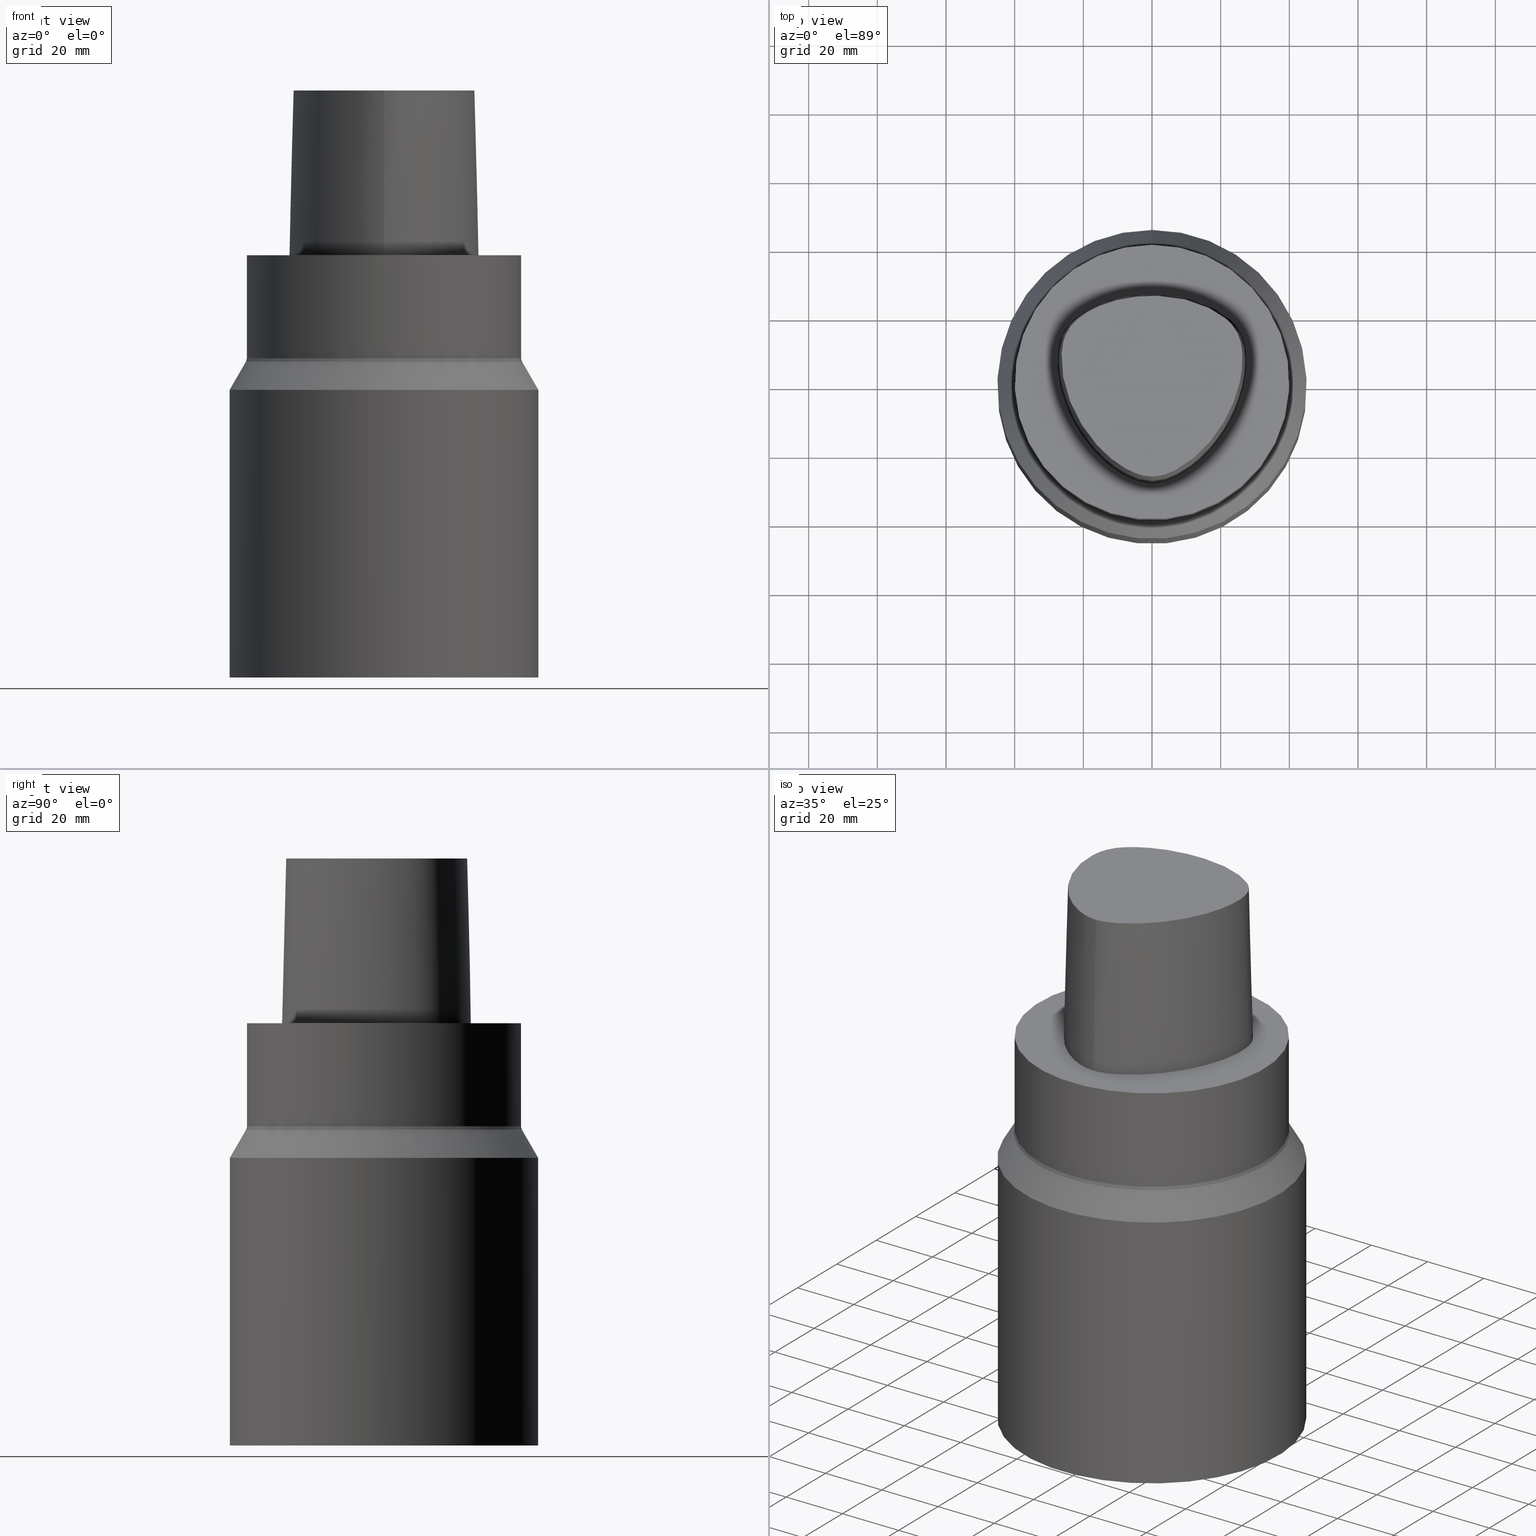
[diagram: canonical four-view strip — front | top / right | iso, engineering-drawing reading convention]
A machine part, canonical four-view strip (front | top / right | iso — engineering-drawing reading convention). The complete STEP part file that produces these views, byte-faithful:
ISO-10303-21;
HEADER;
FILE_DESCRIPTION((''),'1');
FILE_NAME('//Big_tech03/bigt/Translate/11_3D_Field/02_Step_Field/92_Capto_\X2\56DE8EE27528FF8EFF99FF80FF9E\X0\/CK/C8-CKB7-123.stp','2012-12-05T02:48:17',(''),(''),'Spatial Interop R18','Kubotek KeyCreator V8.5.1 (14335)',' ');
FILE_SCHEMA(('CONFIG_CONTROL_DESIGN'));
ENDSEC;
DATA;
#1=DESIGN_CONTEXT('',#27,'design');
#2=APPLICATION_PROTOCOL_DEFINITION('INTERNATIONAL STANDARD','config_control_design',1994,#27);
#3=PRODUCT_CATEGORY_RELATIONSHIP('NONE','NONE',#28,#29);
#4=DATE_AND_TIME(#30,#31);
#5=DATE_TIME_ROLE('creation_date');
#6=DATE_TIME_ROLE('classification_date');
#7=PERSON_AND_ORGANIZATION_ROLE('creator');
#8=PERSON_AND_ORGANIZATION_ROLE('design_supplier');
#9=PERSON_AND_ORGANIZATION_ROLE('classification_officer');
#10=PERSON_AND_ORGANIZATION_ROLE('design_owner');
#11=APPROVAL_PERSON_ORGANIZATION(#32,#33,#34);
#12=APPROVAL_DATE_TIME(#4,#33);
#13=CC_DESIGN_APPROVAL(#33,(#35,#36,#37));
#14=CC_DESIGN_DATE_AND_TIME_ASSIGNMENT(#4,#5,(#37));
#15=CC_DESIGN_DATE_AND_TIME_ASSIGNMENT(#4,#6,(#35));
#16=CC_DESIGN_PERSON_AND_ORGANIZATION_ASSIGNMENT(#32,#10,(#38));
#17=CC_DESIGN_PERSON_AND_ORGANIZATION_ASSIGNMENT(#32,#7,(#37));
#18=CC_DESIGN_PERSON_AND_ORGANIZATION_ASSIGNMENT(#32,#7,(#36));
#19=CC_DESIGN_PERSON_AND_ORGANIZATION_ASSIGNMENT(#32,#8,(#36));
#20=CC_DESIGN_SECURITY_CLASSIFICATION(#35,(#36));
#21=CC_DESIGN_PERSON_AND_ORGANIZATION_ASSIGNMENT(#32,#9,(#35));
#22=SHAPE_DEFINITION_REPRESENTATION(#39,#40);
#23= (GEOMETRIC_REPRESENTATION_CONTEXT(3)GLOBAL_UNCERTAINTY_ASSIGNED_CONTEXT((#43))GLOBAL_UNIT_ASSIGNED_CONTEXT((#45,#46,#47))REPRESENTATION_CONTEXT('NONE','WORKSPACE'));
#27=APPLICATION_CONTEXT('CONFIGURATION CONTROLLED 3D DESIGNS OF MECHANICAL PARTS AND ASSEMBLIES');
#28=PRODUCT_CATEGORY('part','NONE');
#29=PRODUCT_RELATED_PRODUCT_CATEGORY('detail',' ',(#38));
#30=CALENDAR_DATE(2012,5,11);
#31=LOCAL_TIME(11,48,17.0,#49);
#32=PERSON_AND_ORGANIZATION(#50,#51);
#33=APPROVAL(#52,'SOLID MODEL');
#34=APPROVAL_ROLE('APPROVED');
#35=SECURITY_CLASSIFICATION('','',#53);
#36=PRODUCT_DEFINITION_FORMATION_WITH_SPECIFIED_SOURCE(' ','NONE',#38,.NOT_KNOWN.);
#37=PRODUCT_DEFINITION('NONE','NONE',#36,#1);
#38=PRODUCT('1','1','PART-1-DESC',(#54));
#39=PRODUCT_DEFINITION_SHAPE('NONE','NONE',#37);
#40=ADVANCED_BREP_SHAPE_REPRESENTATION('1',(#55,#56),#23);
#43=UNCERTAINTY_MEASURE_WITH_UNIT(LENGTH_MEASURE(1.0E-006),#45,'','');
#45= (CONVERSION_BASED_UNIT('MILLIMETRE',#59)LENGTH_UNIT()NAMED_UNIT(#62));
#46= (NAMED_UNIT(#64)PLANE_ANGLE_UNIT()SI_UNIT($,.RADIAN.));
#47= (NAMED_UNIT(#64)SOLID_ANGLE_UNIT()SI_UNIT($,.STERADIAN.));
#49=COORDINATED_UNIVERSAL_TIME_OFFSET(9,0,.AHEAD.);
#50=PERSON('','UNSPECIFIED',$,$,$,$);
#51=ORGANIZATION('UNSPECIFIED','UNSPECIFIED','UNSPECIFIED');
#52=APPROVAL_STATUS('approved');
#53=SECURITY_CLASSIFICATION_LEVEL('unclassified');
#54=MECHANICAL_CONTEXT('',#27,'mechanical');
#55=MANIFOLD_SOLID_BREP('1',#70);
#56=AXIS2_PLACEMENT_3D('',#71,#72,#73);
#59=LENGTH_MEASURE_WITH_UNIT(LENGTH_MEASURE(1.0),#74);
#62=DIMENSIONAL_EXPONENTS(1.0,0.0,0.0,0.0,0.0,0.0,0.0);
#64=DIMENSIONAL_EXPONENTS(0.0,0.0,0.0,0.0,0.0,0.0,0.0);
#70=CLOSED_SHELL('',(#75,#76,#77,#78,#79,#80,#81,#82));
#71=CARTESIAN_POINT('',(0.0,0.0,0.0));
#72=DIRECTION('',(0.0,0.0,1.0));
#73=DIRECTION('',(1.0,0.0,0.0));
#74= (NAMED_UNIT(#62)LENGTH_UNIT()SI_UNIT(.MILLI.,.METRE.));
#75=ADVANCED_FACE('',(#84),#85,.T.);
#76=ADVANCED_FACE('',(#86),#87,.F.);
#77=ADVANCED_FACE('',(#88,#89),#90,.T.);
#78=ADVANCED_FACE('',(#91,#92),#93,.T.);
#79=ADVANCED_FACE('',(#94,#95),#96,.T.);
#80=ADVANCED_FACE('',(#97),#98,.T.);
#81=ADVANCED_FACE('',(#99,#100),#101,.T.);
#82=ADVANCED_FACE('',(#102,#103),#104,.T.);
#84=FACE_OUTER_BOUND('',#105,.T.);
#85=PLANE('',#106);
#86=FACE_OUTER_BOUND('',#107,.T.);
#87=B_SPLINE_SURFACE_WITH_KNOTS('',3,3,((#108,#109,#110,#111),(#112,#113,#114,#115),(#116,#117,#118,#119),(#120,#121,#122,#123),(#124,#125,#126,#127),(#128,#129,#130,#131),(#132,#133,#134,#135),(#136,#137,#138,#139),(#140,#141,#142,#143),(#144,#145,#146,#147),(#148,#149,#150,#151),(#152,#153,#154,#155),(#156,#157,#158,#159),(#160,#161,#162,#163),(#164,#165,#166,#167),(#168,#169,#170,#171),(#172,#173,#174,#175),(#176,#177,#178,#179),(#180,#181,#182,#183),(#184,#185,#186,#187),(#188,#189,#190,#191),(#192,#193,#194,#195),(#196,#197,#198,#199),(#200,#201,#202,#203),(#204,#205,#206,#207),(#208,#209,#210,#211),(#212,#213,#214,#215),(#216,#217,#218,#219),(#220,#221,#222,#223),(#224,#225,#226,#227),(#228,#229,#230,#231),(#232,#233,#234,#235),(#236,#237,#238,#239),(#240,#241,#242,#243),(#244,#245,#246,#247),(#248,#249,#250,#251),(#252,#253,#254,#255),(#256,#257,#258,#259),(#260,#261,#262,#263),(#264,#265,#266,#267),(#268,#269,#270,#271),(#272,#273,#274,#275),(#276,#277,#278,#279),(#280,#281,#282,#283),(#284,#285,#286,#287),(#288,#289,#290,#291),(#292,#293,#294,#295),(#296,#297,#298,#299),(#300,#301,#302,#303),(#304,#305,#306,#307),(#308,#309,#310,#311),(#312,#313,#314,#315),(#316,#317,#318,#319),(#320,#321,#322,#323),(#324,#325,#326,#327),(#328,#329,#330,#331),(#332,#333,#334,#335),(#336,#337,#338,#339),(#340,#341,#342,#343),(#344,#345,#346,#347),(#348,#349,#350,#351),(#352,#353,#354,#355),(#356,#357,#358,#359),(#360,#361,#362,#363),(#364,#365,#366,#367),(#368,#369,#370,#371),(#372,#373,#374,#375),(#376,#377,#378,#379),(#380,#381,#382,#383),(#384,#385,#386,#387),(#388,#389,#390,#391),(#392,#393,#394,#395),(#396,#397,#398,#399),(#400,#401,#402,#403),(#404,#405,#406,#407),(#408,#409,#410,#411),(#412,#413,#414,#415),(#416,#417,#418,#419),(#420,#421,#422,#423),(#424,#425,#426,#427),(#428,#429,#430,#431),(#432,#433,#434,#435),(#436,#437,#438,#439),(#440,#441,#442,#443),(#444,#445,#446,#447),(#448,#449,#450,#451),(#452,#453,#454,#455),(#456,#457,#458,#459),(#460,#461,#462,#463),(#464,#465,#466,#467),(#468,#469,#470,#471),(#472,#473,#474,#475),(#476,#477,#478,#479),(#480,#481,#482,#483),(#484,#485,#486,#487),(#488,#489,#490,#491)),.UNSPECIFIED.,.T.,.F.,.F.,(4,2,2,2,2,2,2,2,2,2,2,2,2,2,2,2,2,2,2,2,2,2,2,2,2,2,2,2,2,2,2,2,2,2,2,2,2,2,2,2,2,2,2,2,2,2,2,4),(4,4),(0.0,0.023266238907101,0.04642321916497,0.069037428304488,0.090947532765319,0.112181511979892,0.132874081906891,0.153211623090307,0.173403899120381,0.193668982465133,0.214220857423359,0.235256169578881,0.256931182005521,0.279316100520023,0.302327812922285,0.325615908452607,0.348863915862354,0.37211588966546,0.394944167045003,0.417090524637617,0.438530318382332,0.459402579310312,0.479837360161492,0.499920279645309,0.520144802150986,0.540579089622822,0.561451608096301,0.58289068047617,0.605037731022285,0.627865851215146,0.651117829762372,0.674365843809947,0.697654002942623,0.720665464887439,0.743050887635834,0.764725116248188,0.7857605656535,0.806312370379442,0.826577482765943,0.846769695561797,0.867106984936976,0.887799904832214,0.90903349107026,0.930943318867528,0.953557807681498,0.97671479981417,0.999990517903696,1.0),(0.0,1.0),.UNSPECIFIED.);
#88=FACE_BOUND('',#492,.T.);
#89=FACE_BOUND('',#493,.T.);
#90=CONICAL_SURFACE('',#494,40.1264745975301,0.261799388060947);
#91=FACE_BOUND('',#495,.T.);
#92=FACE_BOUND('',#496,.T.);
#93=CONICAL_SURFACE('',#497,42.6302245975301,0.523598776551385);
#94=FACE_BOUND('',#498,.T.);
#95=FACE_BOUND('',#499,.T.);
#96=CYLINDRICAL_SURFACE('',#500,45.0);
#97=FACE_OUTER_BOUND('',#501,.T.);
#98=PLANE('',#502);
#99=FACE_BOUND('',#503,.T.);
#100=FACE_OUTER_BOUND('',#504,.T.);
#101=PLANE('',#505);
#102=FACE_BOUND('',#506,.T.);
#103=FACE_BOUND('',#507,.T.);
#104=CYLINDRICAL_SURFACE('',#508,39.9925);
#105=EDGE_LOOP('',(#509));
#106=AXIS2_PLACEMENT_3D('',#510,#511,#512);
#107=EDGE_LOOP('',(#513,#514,#515,#516));
#108=CARTESIAN_POINT('',(-0.00164083163227662,-29.5748662817043,-1.71094801434501E-031));
#109=CARTESIAN_POINT('',(-0.00109388775485357,-29.1748752353538,16.0));
#110=CARTESIAN_POINT('',(-0.000546943877430524,-28.7748841890034,32.0));
#111=CARTESIAN_POINT('',(-7.10564420632981E-015,-28.3748931426529,48.0));
#112=CARTESIAN_POINT('',(-1.34367882227266,-29.5936106625075,-3.82104500966428E-031));
#113=CARTESIAN_POINT('',(-1.32364088726301,-29.1954996353872,16.0));
#114=CARTESIAN_POINT('',(-1.30360295225335,-28.7973886082668,32.0));
#115=CARTESIAN_POINT('',(-1.2835650172437,-28.3992775811465,48.0));
#116=CARTESIAN_POINT('',(-2.68740420004953,-29.3328889282446,-2.71170936169723E-031));
#117=CARTESIAN_POINT('',(-2.64750445553282,-28.9319521286455,16.0));
#118=CARTESIAN_POINT('',(-2.60760471101611,-28.5310153290465,32.0));
#119=CARTESIAN_POINT('',(-2.5677049664994,-28.1300785294475,48.0));
#120=CARTESIAN_POINT('',(-5.26074084631931,-28.5400905705423,2.46519032881566E-031));
#121=CARTESIAN_POINT('',(-5.18121381339101,-28.1402727371518,16.0));
#122=CARTESIAN_POINT('',(-5.10168678046272,-27.7404549037613,32.0));
#123=CARTESIAN_POINT('',(-5.02215974753443,-27.3406370703708,48.0));
#124=CARTESIAN_POINT('',(-6.49085836398545,-28.0092939838118,-9.86076131526265E-032));
#125=CARTESIAN_POINT('',(-6.39148945613548,-27.6135438881297,16.0));
#126=CARTESIAN_POINT('',(-6.29212054828551,-27.2177937924476,32.0));
#127=CARTESIAN_POINT('',(-6.19275164043553,-26.8220436967655,48.0));
#128=CARTESIAN_POINT('',(-8.82856305941638,-26.7799538548108,9.86076131526265E-032));
#129=CARTESIAN_POINT('',(-8.69143543024714,-26.3953789566877,16.0));
#130=CARTESIAN_POINT('',(-8.55430780107789,-26.0108040585645,32.0));
#131=CARTESIAN_POINT('',(-8.41718017190864,-25.6262291604414,48.0));
#132=CARTESIAN_POINT('',(-9.93834640062538,-26.0856337015913,-9.86076131526265E-032));
#133=CARTESIAN_POINT('',(-9.78329057919871,-25.7081232854591,16.0));
#134=CARTESIAN_POINT('',(-9.62823475777205,-25.330612869327,32.0));
#135=CARTESIAN_POINT('',(-9.47317893634538,-24.9531024531949,48.0));
#136=CARTESIAN_POINT('',(-12.0309823905868,-24.5926315357893,-1.97215226305253E-031));
#137=CARTESIAN_POINT('',(-11.8421918576357,-24.2319203104979,16.0));
#138=CARTESIAN_POINT('',(-11.6534013246846,-23.8712090852066,32.0));
#139=CARTESIAN_POINT('',(-11.4646107917336,-23.5104978599152,48.0));
#140=CARTESIAN_POINT('',(-13.0167112443809,-23.7978719690822,-2.95822839457879E-031));
#141=CARTESIAN_POINT('',(-12.8120582068171,-23.4468353517023,16.0));
#142=CARTESIAN_POINT('',(-12.6074051692533,-23.0957987343225,32.0));
#143=CARTESIAN_POINT('',(-12.4027521316895,-22.7447621169426,48.0));
#144=CARTESIAN_POINT('',(-14.8727265816832,-22.1381942733804,0.0));
#145=CARTESIAN_POINT('',(-14.6383713737375,-21.808159912819,16.0));
#146=CARTESIAN_POINT('',(-14.4040161657918,-21.4781255522576,32.0));
#147=CARTESIAN_POINT('',(-14.1696609578462,-21.1480911916963,48.0));
#148=CARTESIAN_POINT('',(-15.7456368168333,-21.2761980066665,0.0));
#149=CARTESIAN_POINT('',(-15.4973991165055,-20.9574397902916,16.0));
#150=CARTESIAN_POINT('',(-15.2491614161778,-20.6386815739168,32.0));
#151=CARTESIAN_POINT('',(-15.0009237158501,-20.319923357542,48.0));
#152=CARTESIAN_POINT('',(-17.3879214183881,-19.499427365145,1.97215226305253E-031));
#153=CARTESIAN_POINT('',(-17.1137771976026,-19.204500665996,16.0));
#154=CARTESIAN_POINT('',(-16.8396329768171,-18.9095739668469,32.0));
#155=CARTESIAN_POINT('',(-16.5654887560317,-18.6146472676979,48.0));
#156=CARTESIAN_POINT('',(-18.1593681806271,-18.5865590846551,1.97215226305253E-031));
#157=CARTESIAN_POINT('',(-17.8731624623415,-18.3041523513154,16.0));
#158=CARTESIAN_POINT('',(-17.5869567440558,-18.0217456179756,32.0));
#159=CARTESIAN_POINT('',(-17.3007510257701,-17.7393388846359,48.0));
#160=CARTESIAN_POINT('',(-19.6094862833069,-16.7150017171437,0.0));
#161=CARTESIAN_POINT('',(-19.3009203341129,-16.458705455358,16.0));
#162=CARTESIAN_POINT('',(-18.9923543849188,-16.2024091935724,32.0));
#163=CARTESIAN_POINT('',(-18.6837884357248,-15.9461129317867,48.0));
#164=CARTESIAN_POINT('',(-20.289522306802,-15.7573675155919,1.97215226305253E-031));
#165=CARTESIAN_POINT('',(-19.9706311197053,-15.5146407474198,16.0));
#166=CARTESIAN_POINT('',(-19.6517399326086,-15.2719139792477,32.0));
#167=CARTESIAN_POINT('',(-19.3328487455118,-15.0291872110755,48.0));
#168=CARTESIAN_POINT('',(-21.5656702578572,-13.797506639011,0.0));
#169=CARTESIAN_POINT('',(-21.2277269942578,-13.5828445459812,16.0));
#170=CARTESIAN_POINT('',(-20.8897837306584,-13.3681824529514,32.0));
#171=CARTESIAN_POINT('',(-20.551840467059,-13.1535203599216,48.0));
#172=CARTESIAN_POINT('',(-22.1623469365906,-12.7956473319474,-1.97215226305253E-031));
#173=CARTESIAN_POINT('',(-21.8156667575515,-12.5954737847242,16.0));
#174=CARTESIAN_POINT('',(-21.4689865785123,-12.395300237501,32.0));
#175=CARTESIAN_POINT('',(-21.1223063994731,-12.1951266902779,48.0));
#176=CARTESIAN_POINT('',(-23.2752180864568,-10.74347032584,-1.97215226305253E-031));
#177=CARTESIAN_POINT('',(-22.9126797349918,-10.5732054400807,16.0));
#178=CARTESIAN_POINT('',(-22.5501413835268,-10.4029405543215,32.0));
#179=CARTESIAN_POINT('',(-22.1876030320618,-10.2326756685623,48.0));
#180=CARTESIAN_POINT('',(-23.7911146053519,-9.69299092556668,-1.97215226305253E-031));
#181=CARTESIAN_POINT('',(-23.4214608987418,-9.53814935338786,16.0));
#182=CARTESIAN_POINT('',(-23.0518071921317,-9.38330778120904,32.0));
#183=CARTESIAN_POINT('',(-22.6821534855217,-9.22846620903023,48.0));
#184=CARTESIAN_POINT('',(-24.7420870094788,-7.5381981687329,-1.97215226305253E-031));
#185=CARTESIAN_POINT('',(-24.3598707005685,-7.41514904306529,16.0));
#186=CARTESIAN_POINT('',(-23.9776543916582,-7.29209991739768,32.0));
#187=CARTESIAN_POINT('',(-23.595438082748,-7.16905079173007,48.0));
#188=CARTESIAN_POINT('',(-25.1759157970854,-6.43333334291294,-1.97215226305253E-031));
#189=CARTESIAN_POINT('',(-24.7882755665458,-6.32666326762096,16.0));
#190=CARTESIAN_POINT('',(-24.4006353360062,-6.21999319232899,32.0));
#191=CARTESIAN_POINT('',(-24.0129951054667,-6.11332311703701,48.0));
#192=CARTESIAN_POINT('',(-25.9554404448504,-4.16361692512216,-1.97215226305253E-031));
#193=CARTESIAN_POINT('',(-25.5588495567967,-4.09066455075699,16.0));
#194=CARTESIAN_POINT('',(-25.162258668743,-4.01771217639183,32.0));
#195=CARTESIAN_POINT('',(-24.7656677806893,-3.94475980202666,48.0));
#196=CARTESIAN_POINT('',(-26.2988231270793,-2.99796562277024,0.0));
#197=CARTESIAN_POINT('',(-25.8987494668059,-2.94236646726182,16.0));
#198=CARTESIAN_POINT('',(-25.4986758065324,-2.8867673117534,32.0));
#199=CARTESIAN_POINT('',(-25.0986021462589,-2.83116815624498,48.0));
#200=CARTESIAN_POINT('',(-26.8823734669132,-0.603263018451638,0.0));
#201=CARTESIAN_POINT('',(-26.4773269868267,-0.58326995782473,16.0));
#202=CARTESIAN_POINT('',(-26.0722805067402,-0.563276897197823,32.0));
#203=CARTESIAN_POINT('',(-25.6672340266537,-0.543283836570916,48.0));
#204=CARTESIAN_POINT('',(-27.1190847093475,0.626638314508983,0.0));
#205=CARTESIAN_POINT('',(-26.7126061354873,0.628366159501025,16.0));
#206=CARTESIAN_POINT('',(-26.306127561627,0.630094004493068,32.0));
#207=CARTESIAN_POINT('',(-25.8996489877668,0.63182184948511,48.0));
#208=CARTESIAN_POINT('',(-27.4609002561416,3.14696645819561,0.0));
#209=CARTESIAN_POINT('',(-27.0547212638528,3.11146875703149,16.0));
#210=CARTESIAN_POINT('',(-26.6485422715639,3.07597105586737,32.0));
#211=CARTESIAN_POINT('',(-26.2423632792751,3.04047335470325,48.0));
#212=CARTESIAN_POINT('',(-27.5614402101816,4.43805628657726,0.0));
#213=CARTESIAN_POINT('',(-27.1570763257013,4.3835808748269,16.0));
#214=CARTESIAN_POINT('',(-26.7527124412211,4.32910546307654,32.0));
#215=CARTESIAN_POINT('',(-26.3483485567409,4.27463005132618,48.0));
#216=CARTESIAN_POINT('',(-27.5863066124947,7.05787796805235,0.0));
#217=CARTESIAN_POINT('',(-27.1886435264071,6.96515495190913,16.0));
#218=CARTESIAN_POINT('',(-26.7909804403194,6.87243193576591,32.0));
#219=CARTESIAN_POINT('',(-26.3933173542318,6.77970891962269,48.0));
#220=CARTESIAN_POINT('',(-27.5056201279308,8.38665155837627,0.0));
#221=CARTESIAN_POINT('',(-27.1129044510275,8.27466583473029,16.0));
#222=CARTESIAN_POINT('',(-26.7201887741241,8.1626801110843,32.0));
#223=CARTESIAN_POINT('',(-26.3274730972208,8.05069438743832,48.0));
#224=CARTESIAN_POINT('',(-27.0954571151674,11.0352567744664,0.0));
#225=CARTESIAN_POINT('',(-26.7183753741604,10.8867620797351,16.0));
#226=CARTESIAN_POINT('',(-26.3412936331534,10.7382673850039,32.0));
#227=CARTESIAN_POINT('',(-25.9642118921463,10.5897726902727,48.0));
#228=CARTESIAN_POINT('',(-26.7630041230867,12.3547893226748,0.0));
#229=CARTESIAN_POINT('',(-26.3965598522753,12.1889620363458,16.0));
#230=CARTESIAN_POINT('',(-26.0301155814639,12.0231347500168,32.0));
#231=CARTESIAN_POINT('',(-25.6636713106525,11.8573074636878,48.0));
#232=CARTESIAN_POINT('',(-25.6724521861925,14.8124702450063,0.0));
#233=CARTESIAN_POINT('',(-25.3253408215574,14.6123501239471,16.0));
#234=CARTESIAN_POINT('',(-24.9782294569222,14.4122300028879,32.0));
#235=CARTESIAN_POINT('',(-24.631118092287,14.2121098818286,48.0));
#236=CARTESIAN_POINT('',(-24.9150869333233,15.9509269437304,0.0));
#237=CARTESIAN_POINT('',(-24.5767509947569,15.7338600538486,16.0));
#238=CARTESIAN_POINT('',(-24.2384150561905,15.5167931639667,32.0));
#239=CARTESIAN_POINT('',(-23.9000791176241,15.2997262740848,48.0));
#240=CARTESIAN_POINT('',(-23.1210312548435,17.9569470053759,0.0));
#241=CARTESIAN_POINT('',(-22.8030108627851,17.7061249979891,16.0));
#242=CARTESIAN_POINT('',(-22.4849904707268,17.4553029906023,32.0));
#243=CARTESIAN_POINT('',(-22.1669700786685,17.2044809832156,48.0));
#244=CARTESIAN_POINT('',(-22.0842931950003,18.8244641174544,0.0));
#245=CARTESIAN_POINT('',(-21.7778135373241,18.5567873324772,16.0));
#246=CARTESIAN_POINT('',(-21.4713338796478,18.2891105475,32.0));
#247=CARTESIAN_POINT('',(-21.1648542219715,18.0214337625228,48.0));
#248=CARTESIAN_POINT('',(-19.908909483221,20.3616348354058,0.0));
#249=CARTESIAN_POINT('',(-19.628591242806,20.0640526797034,16.0));
#250=CARTESIAN_POINT('',(-19.348273002391,19.766470524001,32.0));
#251=CARTESIAN_POINT('',(-19.0679547619761,19.4688883682986,48.0));
#252=CARTESIAN_POINT('',(-18.7724650249979,21.0346058511353,0.0));
#253=CARTESIAN_POINT('',(-18.5068075321553,20.7239723375169,16.0));
#254=CARTESIAN_POINT('',(-18.2411500393127,20.4133388238985,32.0));
#255=CARTESIAN_POINT('',(-17.9754925464701,20.1027053102802,48.0));
#256=CARTESIAN_POINT('',(-16.4567596515209,22.2069945116741,0.0));
#257=CARTESIAN_POINT('',(-16.2218541830065,21.8737033613927,16.0));
#258=CARTESIAN_POINT('',(-15.9869487144921,21.5404122111113,32.0));
#259=CARTESIAN_POINT('',(-15.7520432459778,21.2071210608299,48.0));
#260=CARTESIAN_POINT('',(-15.2797918086139,22.7109959882008,0.0));
#261=CARTESIAN_POINT('',(-15.0609268076114,22.3679990903467,16.0));
#262=CARTESIAN_POINT('',(-14.8420618066089,22.0250021924925,32.0));
#263=CARTESIAN_POINT('',(-14.6231968056063,21.6820052946383,48.0));
#264=CARTESIAN_POINT('',(-12.9207332535993,23.5857253409895,9.86076131526265E-032));
#265=CARTESIAN_POINT('',(-12.7344650558058,23.2254730372688,16.0));
#266=CARTESIAN_POINT('',(-12.5481968580123,22.8652207335481,32.0));
#267=CARTESIAN_POINT('',(-12.3619286602188,22.5049684298274,48.0));
#268=CARTESIAN_POINT('',(-11.740003999522,23.9601922020954,9.86076131526265E-032));
#269=CARTESIAN_POINT('',(-11.5702860772561,23.5923778375068,16.0));
#270=CARTESIAN_POINT('',(-11.4005681549901,23.2245634729183,32.0));
#271=CARTESIAN_POINT('',(-11.2308502327242,22.8567491083297,48.0));
#272=CARTESIAN_POINT('',(-9.37648722149752,24.5736332451035,-9.86076131526265E-032));
#273=CARTESIAN_POINT('',(-9.24017438913907,24.1942544876504,16.0));
#274=CARTESIAN_POINT('',(-9.10386155678063,23.8148757301974,32.0));
#275=CARTESIAN_POINT('',(-8.96754872442218,23.4354969727443,48.0));
#276=CARTESIAN_POINT('',(-8.19458153545295,24.8159316598014,0.0));
#277=CARTESIAN_POINT('',(-8.07509348120514,24.4324733305797,16.0));
#278=CARTESIAN_POINT('',(-7.95560542695733,24.049015001358,32.0));
#279=CARTESIAN_POINT('',(-7.83611737270952,23.6655566721364,48.0));
#280=CARTESIAN_POINT('',(-5.83850844197054,25.1759510165757,-9.86076131526265E-032));
#281=CARTESIAN_POINT('',(-5.75262513537188,24.7811764769356,16.0));
#282=CARTESIAN_POINT('',(-5.66674182877322,24.3864019372956,32.0));
#283=CARTESIAN_POINT('',(-5.58085852217456,23.9916273976555,48.0));
#284=CARTESIAN_POINT('',(-4.66469807187812,25.2961766417791,-1.4791141972894E-031));
#285=CARTESIAN_POINT('',(-4.59558843273108,24.8941072061456,16.0));
#286=CARTESIAN_POINT('',(-4.52647879358404,24.492037770512,32.0));
#287=CARTESIAN_POINT('',(-4.457369154437,24.0899683348785,48.0));
#288=CARTESIAN_POINT('',(-2.3312699890678,25.4544662638825,4.93038065763132E-032));
#289=CARTESIAN_POINT('',(-2.29647121024837,25.0618226209864,16.0));
#290=CARTESIAN_POINT('',(-2.26167243142894,24.6691789780903,32.0));
#291=CARTESIAN_POINT('',(-2.22687365260951,24.2765353351942,48.0));
#292=CARTESIAN_POINT('',(-1.17175591409117,25.4939093361241,1.72563323017096E-031));
#293=CARTESIAN_POINT('',(-1.15448009866525,25.1176923885799,16.0));
#294=CARTESIAN_POINT('',(-1.13720428323932,24.7414754410358,32.0));
#295=CARTESIAN_POINT('',(-1.1199284678134,24.3652584934917,48.0));
#296=CARTESIAN_POINT('',(1.15545266416126,25.494540252471,1.10933564796705E-031));
#297=CARTESIAN_POINT('',(1.13757337077305,25.1184162091964,16.0));
#298=CARTESIAN_POINT('',(1.11969407738485,24.7422921659217,32.0));
#299=CARTESIAN_POINT('',(1.10181478399665,24.366168122647,48.0));
#300=CARTESIAN_POINT('',(2.32314720120702,25.4551743644366,1.4791141972894E-031));
#301=CARTESIAN_POINT('',(2.28763587852751,25.0624845721615,16.0));
#302=CARTESIAN_POINT('',(2.252124555848,24.6697947798863,32.0));
#303=CARTESIAN_POINT('',(2.21661323316848,24.2771049876112,48.0));
#304=CARTESIAN_POINT('',(4.66463729586072,25.2960231489021,9.86076131526265E-032));
#305=CARTESIAN_POINT('',(4.59473395742708,24.89409982816,16.0));
#306=CARTESIAN_POINT('',(4.52483061899343,24.492176507418,32.0));
#307=CARTESIAN_POINT('',(4.45492728055979,24.0902531866759,48.0));
#308=CARTESIAN_POINT('',(5.83837051795068,25.1754079607774,9.86076131526265E-032));
#309=CARTESIAN_POINT('',(5.75171531671322,24.7809806255071,16.0));
#310=CARTESIAN_POINT('',(5.66506011547576,24.3865532902368,32.0));
#311=CARTESIAN_POINT('',(5.5784049142383,23.9921259549665,48.0));
#312=CARTESIAN_POINT('',(8.19448404193754,24.8154739309331,0.0));
#313=CARTESIAN_POINT('',(8.07421934126736,24.4324236535682,16.0));
#314=CARTESIAN_POINT('',(7.95395464059718,24.0493733762032,32.0));
#315=CARTESIAN_POINT('',(7.833689939927,23.6663230988383,48.0));
#316=CARTESIAN_POINT('',(9.37650995847748,24.573664860466,-2.95822839457879E-031));
#317=CARTESIAN_POINT('',(9.23939278056019,24.1945289885103,16.0));
#318=CARTESIAN_POINT('',(9.1022756026429,23.8153931165546,32.0));
#319=CARTESIAN_POINT('',(8.96515842472561,23.4362572445989,48.0));
#320=CARTESIAN_POINT('',(11.7399573199399,23.9602471092435,-9.86076131526265E-032));
#321=CARTESIAN_POINT('',(11.5694176589878,23.5925750133392,16.0));
#322=CARTESIAN_POINT('',(11.3988779980358,23.2249029174349,32.0));
#323=CARTESIAN_POINT('',(11.2283383370838,22.8572308215306,48.0));
#324=CARTESIAN_POINT('',(12.9204914744584,23.585293366417,0.0));
#325=CARTESIAN_POINT('',(12.7334126019956,23.2252563620381,16.0));
#326=CARTESIAN_POINT('',(12.5463337295329,22.8652193576591,32.0));
#327=CARTESIAN_POINT('',(12.3592548570701,22.5051823532802,48.0));
#328=CARTESIAN_POINT('',(15.2795848008339,22.7105342386106,-3.94430452610506E-031));
#329=CARTESIAN_POINT('',(15.0599456207753,22.3678257332467,16.0));
#330=CARTESIAN_POINT('',(14.8403064407168,22.0251172278828,32.0));
#331=CARTESIAN_POINT('',(14.6206672606582,21.6824087225189,48.0));
#332=CARTESIAN_POINT('',(16.4567913745813,22.2070147920283,3.94430452610506E-031));
#333=CARTESIAN_POINT('',(16.2211379891366,21.8740106312453,16.0));
#334=CARTESIAN_POINT('',(15.985484603692,21.5410064704624,32.0));
#335=CARTESIAN_POINT('',(15.7498312182473,21.2080023096794,48.0));
#336=CARTESIAN_POINT('',(18.7726283764867,21.034903794727,-1.97215226305253E-031));
#337=CARTESIAN_POINT('',(18.5061802246464,20.7246144010509,16.0));
#338=CARTESIAN_POINT('',(18.239732072806,20.4143250073749,32.0));
#339=CARTESIAN_POINT('',(17.9732839209656,20.1040356136989,48.0));
#340=CARTESIAN_POINT('',(19.9089592260428,20.3617120962174,-1.97215226305253E-031));
#341=CARTESIAN_POINT('',(19.6277825012094,20.0645362290446,16.0));
#342=CARTESIAN_POINT('',(19.346605776376,19.7673603618717,32.0));
#343=CARTESIAN_POINT('',(19.0654290515425,19.4701844946989,48.0));
#344=CARTESIAN_POINT('',(22.0842485191724,18.8243782496281,0.0));
#345=CARTESIAN_POINT('',(21.7772896699694,18.5572545504423,16.0));
#346=CARTESIAN_POINT('',(21.4703308207664,18.2901308512565,32.0));
#347=CARTESIAN_POINT('',(21.1633719715633,18.0230071520707,48.0));
#348=CARTESIAN_POINT('',(23.12100726512,17.9569227334155,-3.94430452610506E-031));
#349=CARTESIAN_POINT('',(22.8029696368782,17.7067453188338,16.0));
#350=CARTESIAN_POINT('',(22.4849320086363,17.456567904252,32.0));
#351=CARTESIAN_POINT('',(22.1668943803944,17.2063904896703,48.0));
#352=CARTESIAN_POINT('',(24.9151158158093,15.9509545348034,1.97215226305253E-031));
#353=CARTESIAN_POINT('',(24.5756586677008,15.7344431299893,16.0));
#354=CARTESIAN_POINT('',(24.2362015195923,15.5179317251751,32.0));
#355=CARTESIAN_POINT('',(23.8967443714838,15.301420320361,48.0));
#356=CARTESIAN_POINT('',(25.6725132300842,14.8124880933032,-1.97215226305253E-031));
#357=CARTESIAN_POINT('',(25.3227202771017,14.6127234549365,16.0));
#358=CARTESIAN_POINT('',(24.9729273241191,14.4129588165699,32.0));
#359=CARTESIAN_POINT('',(24.6231343711365,14.2131941782033,48.0));
#360=CARTESIAN_POINT('',(26.762962807837,12.3547780213407,0.0));
#361=CARTESIAN_POINT('',(26.398663500033,12.1901922596334,16.0));
#362=CARTESIAN_POINT('',(26.0343641922291,12.0256064979261,32.0));
#363=CARTESIAN_POINT('',(25.6700648844252,11.8610207362188,48.0));
#364=CARTESIAN_POINT('',(27.0952799458876,11.0352256163986,1.97215226305253E-031));
#365=CARTESIAN_POINT('',(26.7267395269462,10.8890582561754,16.0));
#366=CARTESIAN_POINT('',(26.3581991080048,10.7428908959522,32.0));
#367=CARTESIAN_POINT('',(25.9896586890633,10.596723535729,48.0));
#368=CARTESIAN_POINT('',(27.5055512569286,8.38661456077751,-1.97215226305253E-031));
#369=CARTESIAN_POINT('',(27.1169004134887,8.27733014584273,16.0));
#370=CARTESIAN_POINT('',(26.7282495700488,8.16804573090794,32.0));
#371=CARTESIAN_POINT('',(26.3395987266089,8.05876131597316,48.0));
#372=CARTESIAN_POINT('',(27.5864807188881,7.05785513793989,0.0));
#373=CARTESIAN_POINT('',(27.1820241656145,6.96726116911852,16.0));
#374=CARTESIAN_POINT('',(26.777567612341,6.87666720029716,32.0));
#375=CARTESIAN_POINT('',(26.3731110590674,6.78607323147579,48.0));
#376=CARTESIAN_POINT('',(27.561392778196,4.43806075995119,1.97215226305253E-031));
#377=CARTESIAN_POINT('',(27.1463822084827,4.38487769126066,16.0));
#378=CARTESIAN_POINT('',(26.7313716387694,4.33169462257014,32.0));
#379=CARTESIAN_POINT('',(26.3163610690561,4.27851155387961,48.0));
#380=CARTESIAN_POINT('',(27.4604014662893,3.14698296007576,-1.97215226305253E-031));
#381=CARTESIAN_POINT('',(27.0515030324356,3.11254082684148,16.0));
#382=CARTESIAN_POINT('',(26.642604598582,3.0780986936072,32.0));
#383=CARTESIAN_POINT('',(26.2337061647284,3.04365656037292,48.0));
#384=CARTESIAN_POINT('',(27.118611303309,0.626629008731155,0.0));
#385=CARTESIAN_POINT('',(26.7151928129601,0.62925900152782,16.0));
#386=CARTESIAN_POINT('',(26.3117743226112,0.631888994324485,32.0));
#387=CARTESIAN_POINT('',(25.9083558322623,0.63451898712115,48.0));
#388=CARTESIAN_POINT('',(26.8823561320654,-0.603307445442227,0.0));
#389=CARTESIAN_POINT('',(26.4782735139235,-0.582338301865416,16.0));
#390=CARTESIAN_POINT('',(26.0741908957816,-0.561369158288606,32.0));
#391=CARTESIAN_POINT('',(25.6701082776397,-0.540400014711796,48.0));
#392=CARTESIAN_POINT('',(26.2990081949749,-2.99798519998627,0.0));
#393=CARTESIAN_POINT('',(25.8983879486983,-2.9413685941572,16.0));
#394=CARTESIAN_POINT('',(25.4977677024218,-2.88475198832813,32.0));
#395=CARTESIAN_POINT('',(25.0971474561453,-2.82813538249905,48.0));
#396=CARTESIAN_POINT('',(25.9553872246104,-4.1635796118539,0.0));
#397=CARTESIAN_POINT('',(25.5588297122605,-4.08964078527984,16.0));
#398=CARTESIAN_POINT('',(25.1622721999106,-4.01570195870577,32.0));
#399=CARTESIAN_POINT('',(24.7657146875607,-3.9417631321317,48.0));
#400=CARTESIAN_POINT('',(25.1758761789259,-6.43333881304993,0.0));
#401=CARTESIAN_POINT('',(24.7887287831653,-6.32571500476019,16.0));
#402=CARTESIAN_POINT('',(24.4015813874046,-6.21809119647045,32.0));
#403=CARTESIAN_POINT('',(24.014433991644,-6.11046738818071,48.0));
#404=CARTESIAN_POINT('',(24.7422891917365,-7.53829982079647,0.0));
#405=CARTESIAN_POINT('',(24.3604472200928,-7.41429948784325,16.0));
#406=CARTESIAN_POINT('',(23.9786052484491,-7.29029915489003,32.0));
#407=CARTESIAN_POINT('',(23.5967632768054,-7.16629882193681,48.0));
#408=CARTESIAN_POINT('',(23.7911396305002,-9.69297644170626,0.0));
#409=CARTESIAN_POINT('',(23.4218452335822,-9.53722254240601,16.0));
#410=CARTESIAN_POINT('',(23.0525508366642,-9.38146864310577,32.0));
#411=CARTESIAN_POINT('',(22.6832564397462,-9.22571474380552,48.0));
#412=CARTESIAN_POINT('',(23.2748328680553,-10.7432476936092,0.0));
#413=CARTESIAN_POINT('',(22.9127556972629,-10.5721057092551,16.0));
#414=CARTESIAN_POINT('',(22.5506785264706,-10.4009637249009,32.0));
#415=CARTESIAN_POINT('',(22.1886013556782,-10.2298217405468,48.0));
#416=CARTESIAN_POINT('',(22.1620073500161,-12.7954883285933,0.0));
#417=CARTESIAN_POINT('',(21.815844057366,-12.5944492405716,16.0));
#418=CARTESIAN_POINT('',(21.4696807647159,-12.3934101525499,32.0));
#419=CARTESIAN_POINT('',(21.1235174720658,-12.1923710645282,48.0));
#420=CARTESIAN_POINT('',(21.5657838219206,-13.797617876684,0.0));
#421=CARTESIAN_POINT('',(21.2283122616896,-13.5820671510252,16.0));
#422=CARTESIAN_POINT('',(20.8908407014586,-13.3665164253664,32.0));
#423=CARTESIAN_POINT('',(20.5533691412275,-13.1509656997077,48.0));
#424=CARTESIAN_POINT('',(20.289692338909,-15.7574429608729,0.0));
#425=CARTESIAN_POINT('',(19.9713233200916,-15.5138718669657,16.0));
#426=CARTESIAN_POINT('',(19.6529543012743,-15.2703007730586,32.0));
#427=CARTESIAN_POINT('',(19.3345852824569,-15.0267296791514,48.0));
#428=CARTESIAN_POINT('',(19.6092541949823,-16.7147675174567,0.0));
#429=CARTESIAN_POINT('',(19.301307772478,-16.4576955223117,16.0));
#430=CARTESIAN_POINT('',(18.9933613499738,-16.2006235271668,32.0));
#431=CARTESIAN_POINT('',(18.6854149274695,-15.9435515320218,48.0));
#432=CARTESIAN_POINT('',(18.1590928335012,-18.5863673368761,0.0));
#433=CARTESIAN_POINT('',(17.8735516820659,-18.3032106053919,16.0));
#434=CARTESIAN_POINT('',(17.5880105306306,-18.0200538739077,32.0));
#435=CARTESIAN_POINT('',(17.3024693791953,-17.7368971424234,48.0));
#436=CARTESIAN_POINT('',(17.3880163872248,-19.4995970803095,0.0));
#437=CARTESIAN_POINT('',(17.1144808747432,-19.203874850947,16.0));
#438=CARTESIAN_POINT('',(16.8409453622615,-18.9081526215846,32.0));
#439=CARTESIAN_POINT('',(16.5674098497798,-18.6124303922221,48.0));
#440=CARTESIAN_POINT('',(15.7458756068693,-21.2763690689372,0.0));
#441=CARTESIAN_POINT('',(15.4983072339672,-20.9568721930512,16.0));
#442=CARTESIAN_POINT('',(15.2507388610651,-20.6373753171652,32.0));
#443=CARTESIAN_POINT('',(15.003170488163,-20.3178784412792,48.0));
#444=CARTESIAN_POINT('',(14.8727251768577,-22.1379896342994,0.0));
#445=CARTESIAN_POINT('',(14.6391608882147,-21.8073250769185,16.0));
#446=CARTESIAN_POINT('',(14.4055965995716,-21.4766605195376,32.0));
#447=CARTESIAN_POINT('',(14.1720323109285,-21.1459959621566,48.0));
#448=CARTESIAN_POINT('',(13.0164986146837,-23.7977451564491,0.0));
#449=CARTESIAN_POINT('',(12.8127423338318,-23.4462259743379,16.0));
#450=CARTESIAN_POINT('',(12.60898605298,-23.0947067922266,32.0));
#451=CARTESIAN_POINT('',(12.4052297721281,-22.7431876101154,48.0));
#452=CARTESIAN_POINT('',(12.0308072155323,-24.5929843178023,9.86076131526265E-032));
#453=CARTESIAN_POINT('',(11.8428940651753,-24.2318220185598,16.0));
#454=CARTESIAN_POINT('',(11.6549809148182,-23.8706597193174,32.0));
#455=CARTESIAN_POINT('',(11.4670677644611,-23.5094974200749,48.0));
#456=CARTESIAN_POINT('',(9.93827470804141,-26.0847683712151,9.86076131526265E-032));
#457=CARTESIAN_POINT('',(9.78408463139422,-25.7066442659563,16.0));
#458=CARTESIAN_POINT('',(9.62989455474702,-25.3285201606975,32.0));
#459=CARTESIAN_POINT('',(9.47570447809983,-24.9503960554387,48.0));
#460=CARTESIAN_POINT('',(8.82855678381542,-26.7773164869684,9.86076131526265E-032));
#461=CARTESIAN_POINT('',(8.69230228536615,-26.3919547294402,16.0));
#462=CARTESIAN_POINT('',(8.55604778691688,-26.0065929719119,32.0));
#463=CARTESIAN_POINT('',(8.41979328846762,-25.6212312143836,48.0));
#464=CARTESIAN_POINT('',(6.49089493491194,-28.0120447965454,0.0));
#465=CARTESIAN_POINT('',(6.39245845709313,-27.6161837874229,16.0));
#466=CARTESIAN_POINT('',(6.29402197927432,-27.2203227783003,32.0));
#467=CARTESIAN_POINT('',(6.19558550145551,-26.8244617691778,48.0));
#468=CARTESIAN_POINT('',(5.26075348594719,-28.5502192368694,-1.4791141972894E-031));
#469=CARTESIAN_POINT('',(5.18221455016645,-28.1510913348169,16.0));
#470=CARTESIAN_POINT('',(5.10367561438572,-27.7519634327644,32.0));
#471=CARTESIAN_POINT('',(5.02513667860498,-27.3528355307118,48.0));
#472=CARTESIAN_POINT('',(2.68687274960978,-29.3229139791992,9.86076131526265E-032));
#473=CARTESIAN_POINT('',(2.64803480234481,-28.9207762382605,16.0));
#474=CARTESIAN_POINT('',(2.60919685507985,-28.5186384973218,32.0));
#475=CARTESIAN_POINT('',(2.57035890781488,-28.1165007563831,48.0));
#476=CARTESIAN_POINT('',(1.34258338152267,-29.5558632991381,0.0));
#477=CARTESIAN_POINT('',(1.32360819422078,-29.1540083216529,16.0));
#478=CARTESIAN_POINT('',(1.3046330069189,-28.7521533441676,32.0));
#479=CARTESIAN_POINT('',(1.28565781961701,-28.3502983666824,48.0));
#480=CARTESIAN_POINT('',(-0.000546943594638622,-29.5748509568372,-1.12155326605175E-031));
#481=CARTESIAN_POINT('',(-1.58865960915729E-005,-29.1748583819893,16.0));
#482=CARTESIAN_POINT('',(0.000515170402455476,-28.7748658071413,32.0));
#483=CARTESIAN_POINT('',(0.00104622740100153,-28.3748732322933,48.0));
#484=CARTESIAN_POINT('',(-0.00109388747332262,-29.5748586424797,-1.82096676241813E-031));
#485=CARTESIAN_POINT('',(-0.000554887099611573,-29.1748668299322,16.0));
#486=CARTESIAN_POINT('',(-1.58867258995239E-005,-28.7748750173847,32.0));
#487=CARTESIAN_POINT('',(0.000523113647811525,-28.3748832048372,48.0));
#488=CARTESIAN_POINT('',(-0.00164083163225662,-29.5748662817043,2.64694996731721E-031));
#489=CARTESIAN_POINT('',(-0.00109388775484057,-29.1748752353538,16.0));
#490=CARTESIAN_POINT('',(-0.000546943877423524,-28.7748841890034,32.0));
#491=CARTESIAN_POINT('',(-6.51692220632981E-015,-28.3748931426529,48.0));
#492=EDGE_LOOP('',(#517));
#493=EDGE_LOOP('',(#518));
#494=AXIS2_PLACEMENT_3D('',#519,#520,#521);
#495=EDGE_LOOP('',(#522));
#496=EDGE_LOOP('',(#523));
#497=AXIS2_PLACEMENT_3D('',#524,#525,#526);
#498=EDGE_LOOP('',(#527));
#499=EDGE_LOOP('',(#528));
#500=AXIS2_PLACEMENT_3D('',#529,#530,#531);
#501=EDGE_LOOP('',(#532));
#502=AXIS2_PLACEMENT_3D('',#533,#534,#535);
#503=EDGE_LOOP('',(#536));
#504=EDGE_LOOP('',(#537));
#505=AXIS2_PLACEMENT_3D('',#538,#539,#540);
#506=EDGE_LOOP('',(#541));
#507=EDGE_LOOP('',(#542));
#508=AXIS2_PLACEMENT_3D('',#543,#544,#545);
#509=ORIENTED_EDGE('',*,*,#546,.F.);
#510=CARTESIAN_POINT('',(0.00157137799364468,-2.6153184570779,48.0));
#511=DIRECTION('',(-0.0,2.95577857036584E-049,1.0));
#512=DIRECTION('',(1.0,0.0,0.0));
#513=ORIENTED_EDGE('',*,*,#547,.F.);
#514=ORIENTED_EDGE('',*,*,#548,.T.);
#515=ORIENTED_EDGE('',*,*,#546,.T.);
#516=ORIENTED_EDGE('',*,*,#548,.F.);
#517=ORIENTED_EDGE('',*,*,#549,.F.);
#518=ORIENTED_EDGE('',*,*,#550,.T.);
#519=CARTESIAN_POINT('',(1.86658931481632E-015,3.73317862963263E-015,-30.4837168743822));
#520=DIRECTION('',(6.12323399573677E-017,1.22464679914735E-016,-1.0));
#521=DIRECTION('',(-1.23259516440783E-032,1.0,1.22464679914735E-016));
#522=ORIENTED_EDGE('',*,*,#551,.F.);
#523=ORIENTED_EDGE('',*,*,#549,.T.);
#524=CARTESIAN_POINT('',(2.14853799583003E-015,4.29707599166006E-015,-35.0882882693349));
#525=DIRECTION('',(6.12323399573677E-017,1.22464679914735E-016,-1.0));
#526=DIRECTION('',(-1.23259516440783E-032,1.0,1.22464679914735E-016));
#527=ORIENTED_EDGE('',*,*,#552,.F.);
#528=ORIENTED_EDGE('',*,*,#551,.T.);
#529=CARTESIAN_POINT('',(4.96572416067648E-015,9.93144832135295E-015,-81.0964298299527));
#530=DIRECTION('',(-6.12323399573677E-017,-1.22464679914735E-016,1.0));
#531=DIRECTION('',(-1.23259516440783E-032,1.0,1.22464679914735E-016));
#532=ORIENTED_EDGE('',*,*,#552,.T.);
#533=CARTESIAN_POINT('',(7.53157781475622E-015,22.5,-123.0));
#534=DIRECTION('',(6.12323399573677E-017,1.22464679914735E-016,-1.0));
#535=DIRECTION('',(-1.23259516440783E-032,1.0,1.22464679914735E-016));
#536=ORIENTED_EDGE('',*,*,#547,.T.);
#537=ORIENTED_EDGE('',*,*,#553,.F.);
#538=CARTESIAN_POINT('',(-2.46472810562901E-031,19.99625,2.44883435574503E-015));
#539=DIRECTION('',(-6.12323399573677E-017,-1.22464679914735E-016,1.0));
#540=DIRECTION('',(1.23259516440783E-032,-1.0,-1.22464679914735E-016));
#541=ORIENTED_EDGE('',*,*,#550,.F.);
#542=ORIENTED_EDGE('',*,*,#553,.T.);
#543=CARTESIAN_POINT('',(9.1798657228465E-016,1.8359731445693E-015,-14.991858435));
#544=DIRECTION('',(-6.12323399573677E-017,-1.22464679914735E-016,1.0));
#545=DIRECTION('',(-1.23259516440783E-032,1.0,1.22464679914735E-016));
#546=EDGE_CURVE('',#554,#554,#555,.T.);
#547=EDGE_CURVE('',#556,#556,#557,.T.);
#548=EDGE_CURVE('',#556,#554,#558,.T.);
#549=EDGE_CURVE('',#559,#559,#560,.T.);
#550=EDGE_CURVE('',#561,#561,#562,.T.);
#551=EDGE_CURVE('',#563,#563,#564,.T.);
#552=EDGE_CURVE('',#565,#565,#566,.T.);
#553=EDGE_CURVE('',#567,#567,#568,.T.);
#554=VERTEX_POINT('',#569);
#555=B_SPLINE_CURVE_WITH_KNOTS('',3,(#570,#571,#572,#573,#574,#575,#576,#577,#578,#579,#580,#581,#582,#583,#584,#585,#586,#587,#588,#589,#590,#591,#592,#593,#594,#595,#596,#597,#598,#599,#600,#601,#602,#603,#604,#605,#606,#607,#608,#609,#610,#611,#612,#613,#614,#615,#616,#617,#618),.UNSPECIFIED.,.T.,.F.,(4,1,1,1,1,1,1,1,1,1,1,1,1,1,1,1,1,1,1,1,1,1,1,1,1,1,1,1,1,1,1,1,1,1,1,1,1,1,1,1,1,1,1,1,1,1,4),(0.0,0.023351915855444,0.046587266388789,0.069240176568065,0.091148511555983,0.1123498082883,0.132988344921176,0.153259056323784,0.173379606256739,0.193575406900779,0.21406817556902,0.235062876490599,0.256724107877353,0.279134072148509,0.302211911987387,0.325585720772129,0.348897942793447,0.372235827811492,0.395117449062017,0.417273776916591,0.438690480917031,0.459517607941485,0.479887726529216,0.499920279645309,0.520109124362118,0.540479544703226,0.561306546843113,0.582722343807168,0.604879209617679,0.627760890760907,0.651098683894914,0.674411064884055,0.697926557694984,0.721709534344695,0.743275604228345,0.764936939065916,0.785931598379216,0.806424124397203,0.826619873462382,0.846740294796301,0.867010839616641,0.887649545430403,0.908851158162203,0.930759261827623,0.953412277508376,0.976648149620789,1.0),.UNSPECIFIED.);
#556=VERTEX_POINT('',#619);
#557=B_SPLINE_CURVE_WITH_KNOTS('',3,(#620,#621,#622,#623,#624,#625,#626,#627,#628,#629,#630,#631,#632,#633,#634,#635,#636,#637,#638,#639,#640,#641,#642,#643,#644,#645,#646,#647,#648,#649,#650,#651,#652,#653,#654,#655,#656,#657,#658,#659,#660,#661,#662,#663,#664,#665,#666,#667,#668,#669,#670,#671,#672,#673,#674,#675,#676,#677,#678,#679,#680,#681,#682,#683,#684,#685,#686,#687,#688,#689,#690,#691,#692,#693,#694,#695,#696,#697,#698,#699,#700,#701,#702,#703,#704,#705,#706,#707,#708,#709,#710,#711,#712,#713,#714,#715),.UNSPECIFIED.,.T.,.F.,(4,2,2,2,2,2,2,2,2,2,2,2,2,2,2,2,2,2,2,2,2,2,2,2,2,2,2,2,2,2,2,2,2,2,2,2,2,2,2,2,2,2,2,2,2,2,2,4),(0.0,0.023266238907101,0.04642321916497,0.069037428304488,0.090947532765319,0.112181511979892,0.132874081906891,0.153211623090307,0.173403899120381,0.193668982465133,0.214220857423359,0.235256169578881,0.256931182005521,0.279316100520023,0.302327812922285,0.325615908452607,0.348863915862354,0.37211588966546,0.394944167045003,0.417090524637617,0.438530318382332,0.459402579310312,0.479837360161492,0.499920279645309,0.520144802150986,0.540579089622822,0.561451608096301,0.58289068047617,0.605037731022285,0.627865851215146,0.651117829762372,0.674365843809947,0.697654002942623,0.720665464887439,0.743050887635834,0.764725116248188,0.7857605656535,0.806312370379442,0.826577482765943,0.846769695561797,0.867106984936976,0.887799904832214,0.90903349107026,0.930943318867528,0.953557807681498,0.97671479981417,0.999990517903696,1.0),.UNSPECIFIED.);
#558=B_SPLINE_CURVE_WITH_KNOTS('',3,(#716,#717,#718,#719),.UNSPECIFIED.,.F.,.F.,(4,4),(0.0,1.0),.UNSPECIFIED.);
#559=VERTEX_POINT('',#720);
#560=CIRCLE('',#721,40.2604491950601);
#561=VERTEX_POINT('',#722);
#562=CIRCLE('',#723,39.9925);
#563=VERTEX_POINT('',#724);
#564=CIRCLE('',#725,45.0);
#565=VERTEX_POINT('',#726);
#566=CIRCLE('',#727,45.0);
#567=VERTEX_POINT('',#728);
#568=CIRCLE('',#729,39.9925);
#569=CARTESIAN_POINT('',(-7.10564420632981E-015,-28.3748931426529,48.0));
#570=CARTESIAN_POINT('',(-7.10564420632981E-015,-28.3748931426529,48.0));
#571=CARTESIAN_POINT('',(-1.28829169155133,-28.3993673758179,48.0));
#572=CARTESIAN_POINT('',(-3.85959979030208,-27.8581705845853,48.0));
#573=CARTESIAN_POINT('',(-7.35807000570215,-26.3039671919376,48.0));
#574=CARTESIAN_POINT('',(-10.5217929466077,-24.2824556046413,48.0));
#575=CARTESIAN_POINT('',(-13.3353105701073,-21.9813369841311,48.0));
#576=CARTESIAN_POINT('',(-15.8288917398101,-19.4930169713482,48.0));
#577=CARTESIAN_POINT('',(-18.0343115007326,-16.8644361083806,48.0));
#578=CARTESIAN_POINT('',(-19.9811550180694,-14.112279200302,48.0));
#579=CARTESIAN_POINT('',(-21.692701668163,-11.2365503175383,48.0));
#580=CARTESIAN_POINT('',(-23.1773804507421,-8.22359439294641,48.0));
#581=CARTESIAN_POINT('',(-24.4321787442301,-5.05562842604973,48.0));
#582=CARTESIAN_POINT('',(-25.4341273198745,-1.71333919058597,48.0));
#583=CARTESIAN_POINT('',(-26.1351255888409,1.81352567250145,48.0));
#584=CARTESIAN_POINT('',(-26.4570368424595,5.51539373422401,48.0));
#585=CARTESIAN_POINT('',(-26.2640433000089,9.31895598900793,48.0));
#586=CARTESIAN_POINT('',(-25.3673970515537,13.117459349598,48.0));
#587=CARTESIAN_POINT('',(-23.1650593293068,16.3935410203794,48.0));
#588=CARTESIAN_POINT('',(-20.166041033419,18.8340538748086,48.0));
#589=CARTESIAN_POINT('',(-16.8920892201408,20.7294372455208,48.0));
#590=CARTESIAN_POINT('',(-13.5034428612199,22.1513818197868,48.0));
#591=CARTESIAN_POINT('',(-10.1051230998292,23.2053592739476,48.0));
#592=CARTESIAN_POINT('',(-6.71054806820375,23.893087183621,48.0));
#593=CARTESIAN_POINT('',(-3.3440966300513,24.1872106166354,48.0));
#594=CARTESIAN_POINT('',(-0.00436859656821,24.4542290901542,48.0));
#595=CARTESIAN_POINT('',(3.33552046318777,24.1878714828122,48.0));
#596=CARTESIAN_POINT('',(6.7106009616545,23.893485017694,48.0));
#597=CARTESIAN_POINT('',(10.1051559974891,23.2054948559444,48.0));
#598=CARTESIAN_POINT('',(13.5030031791571,22.150447002949,48.0));
#599=CARTESIAN_POINT('',(16.8923744626256,20.7297323497337,48.0));
#600=CARTESIAN_POINT('',(20.1652365808761,18.8339154382717,48.0));
#601=CARTESIAN_POINT('',(23.1681374732146,16.3939826803799,48.0));
#602=CARTESIAN_POINT('',(25.3601741943936,13.1089864874231,48.0));
#603=CARTESIAN_POINT('',(26.321105227627,9.27241325382508,48.0));
#604=CARTESIAN_POINT('',(26.4002391162146,5.46231423864461,48.0));
#605=CARTESIAN_POINT('',(26.1401991546312,1.76738885478758,48.0));
#606=CARTESIAN_POINT('',(25.4303705179883,-1.71324147084198,48.0));
#607=CARTESIAN_POINT('',(24.4327446070836,-5.05553218816385,48.0));
#608=CARTESIAN_POINT('',(23.1773594553093,-8.22370834660234,48.0));
#609=CARTESIAN_POINT('',(21.6921674973232,-11.2362273073486,48.0));
#610=CARTESIAN_POINT('',(19.9813729987982,-14.1124293711817,48.0));
#611=CARTESIAN_POINT('',(18.033984509433,-16.8641649241506,48.0));
#612=CARTESIAN_POINT('',(15.8290011220936,-19.4932243550181,48.0));
#613=CARTESIAN_POINT('',(13.3355411347684,-21.9812451369777,48.0));
#614=CARTESIAN_POINT('',(10.5217064911847,-24.2838945753292,48.0));
#615=CARTESIAN_POINT('',(7.35804941740046,-26.2980532430341,48.0));
#616=CARTESIAN_POINT('',(3.85974088767426,-27.8813814221605,48.0));
#617=CARTESIAN_POINT('',(1.28828807932148,-28.350418978111,48.0));
#618=CARTESIAN_POINT('',(-6.51692220632981E-015,-28.3748931426529,48.0));
#619=CARTESIAN_POINT('',(-0.00164083163227662,-29.5748662817043,-1.71094801434501E-031));
#620=CARTESIAN_POINT('',(-0.00164083163227662,-29.5748662817043,-1.71094801434501E-031));
#621=CARTESIAN_POINT('',(-1.34367882227266,-29.5936106625075,-3.82104500966428E-031));
#622=CARTESIAN_POINT('',(-2.68740420004953,-29.3328889282446,-2.71170936169723E-031));
#623=CARTESIAN_POINT('',(-5.26074084631931,-28.5400905705423,2.46519032881566E-031));
#624=CARTESIAN_POINT('',(-6.49085836398545,-28.0092939838118,-9.86076131526265E-032));
#625=CARTESIAN_POINT('',(-8.82856305941638,-26.7799538548108,9.86076131526265E-032));
#626=CARTESIAN_POINT('',(-9.93834640062538,-26.0856337015913,-9.86076131526265E-032));
#627=CARTESIAN_POINT('',(-12.0309823905868,-24.5926315357893,-1.97215226305253E-031));
#628=CARTESIAN_POINT('',(-13.0167112443809,-23.7978719690822,-2.95822839457879E-031));
#629=CARTESIAN_POINT('',(-14.8727265816832,-22.1381942733804,0.0));
#630=CARTESIAN_POINT('',(-15.7456368168333,-21.2761980066665,0.0));
#631=CARTESIAN_POINT('',(-17.3879214183881,-19.499427365145,1.97215226305253E-031));
#632=CARTESIAN_POINT('',(-18.1593681806271,-18.5865590846551,1.97215226305253E-031));
#633=CARTESIAN_POINT('',(-19.6094862833069,-16.7150017171437,0.0));
#634=CARTESIAN_POINT('',(-20.289522306802,-15.7573675155919,1.97215226305253E-031));
#635=CARTESIAN_POINT('',(-21.5656702578572,-13.797506639011,0.0));
#636=CARTESIAN_POINT('',(-22.1623469365906,-12.7956473319474,-1.97215226305253E-031));
#637=CARTESIAN_POINT('',(-23.2752180864568,-10.74347032584,-1.97215226305253E-031));
#638=CARTESIAN_POINT('',(-23.7911146053519,-9.69299092556668,-1.97215226305253E-031));
#639=CARTESIAN_POINT('',(-24.7420870094788,-7.5381981687329,-1.97215226305253E-031));
#640=CARTESIAN_POINT('',(-25.1759157970854,-6.43333334291294,-1.97215226305253E-031));
#641=CARTESIAN_POINT('',(-25.9554404448504,-4.16361692512216,-1.97215226305253E-031));
#642=CARTESIAN_POINT('',(-26.2988231270793,-2.99796562277024,0.0));
#643=CARTESIAN_POINT('',(-26.8823734669132,-0.603263018451638,0.0));
#644=CARTESIAN_POINT('',(-27.1190847093475,0.626638314508983,0.0));
#645=CARTESIAN_POINT('',(-27.4609002561416,3.14696645819561,0.0));
#646=CARTESIAN_POINT('',(-27.5614402101816,4.43805628657726,0.0));
#647=CARTESIAN_POINT('',(-27.5863066124947,7.05787796805235,0.0));
#648=CARTESIAN_POINT('',(-27.5056201279308,8.38665155837627,0.0));
#649=CARTESIAN_POINT('',(-27.0954571151674,11.0352567744664,0.0));
#650=CARTESIAN_POINT('',(-26.7630041230867,12.3547893226748,0.0));
#651=CARTESIAN_POINT('',(-25.6724521861925,14.8124702450063,0.0));
#652=CARTESIAN_POINT('',(-24.9150869333233,15.9509269437304,0.0));
#653=CARTESIAN_POINT('',(-23.1210312548435,17.9569470053759,0.0));
#654=CARTESIAN_POINT('',(-22.0842931950003,18.8244641174544,0.0));
#655=CARTESIAN_POINT('',(-19.908909483221,20.3616348354058,0.0));
#656=CARTESIAN_POINT('',(-18.7724650249979,21.0346058511353,0.0));
#657=CARTESIAN_POINT('',(-16.4567596515209,22.2069945116741,0.0));
#658=CARTESIAN_POINT('',(-15.2797918086139,22.7109959882008,0.0));
#659=CARTESIAN_POINT('',(-12.9207332535993,23.5857253409895,9.86076131526265E-032));
#660=CARTESIAN_POINT('',(-11.740003999522,23.9601922020954,9.86076131526265E-032));
#661=CARTESIAN_POINT('',(-9.37648722149752,24.5736332451035,-9.86076131526265E-032));
#662=CARTESIAN_POINT('',(-8.19458153545295,24.8159316598014,0.0));
#663=CARTESIAN_POINT('',(-5.83850844197054,25.1759510165757,-9.86076131526265E-032));
#664=CARTESIAN_POINT('',(-4.66469807187812,25.2961766417791,-1.4791141972894E-031));
#665=CARTESIAN_POINT('',(-2.3312699890678,25.4544662638825,4.93038065763132E-032));
#666=CARTESIAN_POINT('',(-1.17175591409117,25.4939093361241,1.72563323017096E-031));
#667=CARTESIAN_POINT('',(1.15545266416126,25.494540252471,1.10933564796705E-031));
#668=CARTESIAN_POINT('',(2.32314720120702,25.4551743644366,1.4791141972894E-031));
#669=CARTESIAN_POINT('',(4.66463729586072,25.2960231489021,9.86076131526265E-032));
#670=CARTESIAN_POINT('',(5.83837051795068,25.1754079607774,9.86076131526265E-032));
#671=CARTESIAN_POINT('',(8.19448404193754,24.8154739309331,0.0));
#672=CARTESIAN_POINT('',(9.37650995847748,24.573664860466,-2.95822839457879E-031));
#673=CARTESIAN_POINT('',(11.7399573199399,23.9602471092435,-9.86076131526265E-032));
#674=CARTESIAN_POINT('',(12.9204914744584,23.585293366417,0.0));
#675=CARTESIAN_POINT('',(15.2795848008339,22.7105342386106,-3.94430452610506E-031));
#676=CARTESIAN_POINT('',(16.4567913745813,22.2070147920283,3.94430452610506E-031));
#677=CARTESIAN_POINT('',(18.7726283764867,21.034903794727,-1.97215226305253E-031));
#678=CARTESIAN_POINT('',(19.9089592260428,20.3617120962174,-1.97215226305253E-031));
#679=CARTESIAN_POINT('',(22.0842485191724,18.8243782496281,0.0));
#680=CARTESIAN_POINT('',(23.12100726512,17.9569227334155,-3.94430452610506E-031));
#681=CARTESIAN_POINT('',(24.9151158158093,15.9509545348034,1.97215226305253E-031));
#682=CARTESIAN_POINT('',(25.6725132300842,14.8124880933032,-1.97215226305253E-031));
#683=CARTESIAN_POINT('',(26.762962807837,12.3547780213407,0.0));
#684=CARTESIAN_POINT('',(27.0952799458876,11.0352256163986,1.97215226305253E-031));
#685=CARTESIAN_POINT('',(27.5055512569286,8.38661456077751,-1.97215226305253E-031));
#686=CARTESIAN_POINT('',(27.5864807188881,7.05785513793989,0.0));
#687=CARTESIAN_POINT('',(27.561392778196,4.43806075995119,1.97215226305253E-031));
#688=CARTESIAN_POINT('',(27.4604014662893,3.14698296007576,-1.97215226305253E-031));
#689=CARTESIAN_POINT('',(27.118611303309,0.626629008731155,0.0));
#690=CARTESIAN_POINT('',(26.8823561320654,-0.603307445442227,0.0));
#691=CARTESIAN_POINT('',(26.2990081949749,-2.99798519998627,0.0));
#692=CARTESIAN_POINT('',(25.9553872246104,-4.1635796118539,0.0));
#693=CARTESIAN_POINT('',(25.1758761789259,-6.43333881304993,0.0));
#694=CARTESIAN_POINT('',(24.7422891917365,-7.53829982079647,0.0));
#695=CARTESIAN_POINT('',(23.7911396305002,-9.69297644170626,0.0));
#696=CARTESIAN_POINT('',(23.2748328680553,-10.7432476936092,0.0));
#697=CARTESIAN_POINT('',(22.1620073500161,-12.7954883285933,0.0));
#698=CARTESIAN_POINT('',(21.5657838219206,-13.797617876684,0.0));
#699=CARTESIAN_POINT('',(20.289692338909,-15.7574429608729,0.0));
#700=CARTESIAN_POINT('',(19.6092541949823,-16.7147675174567,0.0));
#701=CARTESIAN_POINT('',(18.1590928335012,-18.5863673368761,0.0));
#702=CARTESIAN_POINT('',(17.3880163872248,-19.4995970803095,0.0));
#703=CARTESIAN_POINT('',(15.7458756068693,-21.2763690689372,0.0));
#704=CARTESIAN_POINT('',(14.8727251768577,-22.1379896342994,0.0));
#705=CARTESIAN_POINT('',(13.0164986146837,-23.7977451564491,0.0));
#706=CARTESIAN_POINT('',(12.0308072155323,-24.5929843178023,9.86076131526265E-032));
#707=CARTESIAN_POINT('',(9.93827470804141,-26.0847683712151,9.86076131526265E-032));
#708=CARTESIAN_POINT('',(8.82855678381542,-26.7773164869684,9.86076131526265E-032));
#709=CARTESIAN_POINT('',(6.49089493491194,-28.0120447965454,0.0));
#710=CARTESIAN_POINT('',(5.26075348594719,-28.5502192368694,-1.4791141972894E-031));
#711=CARTESIAN_POINT('',(2.68687274960978,-29.3229139791992,9.86076131526265E-032));
#712=CARTESIAN_POINT('',(1.34258338152267,-29.5558632991381,0.0));
#713=CARTESIAN_POINT('',(-0.000546943594638622,-29.5748509568372,-1.12155326605175E-031));
#714=CARTESIAN_POINT('',(-0.00109388747332262,-29.5748586424797,-1.82096676241813E-031));
#715=CARTESIAN_POINT('',(-0.00164083163225662,-29.5748662817043,2.64694996731721E-031));
#716=CARTESIAN_POINT('',(-0.00164083163227662,-29.5748662817043,-1.71094801434501E-031));
#717=CARTESIAN_POINT('',(-0.00109388775485357,-29.1748752353538,16.0));
#718=CARTESIAN_POINT('',(-0.000546943877430524,-28.7748841890034,32.0));
#719=CARTESIAN_POINT('',(-7.10564420632981E-015,-28.3748931426529,48.0));
#720=CARTESIAN_POINT('',(1.89720548506333E-015,40.2604491950601,-30.9837168787644));
#721=AXIS2_PLACEMENT_3D('',#730,#731,#732);
#722=CARTESIAN_POINT('',(1.8359731445693E-015,39.9925,-29.98371687));
#723=AXIS2_PLACEMENT_3D('',#733,#734,#735);
#724=CARTESIAN_POINT('',(2.39987050659673E-015,45.0,-39.1928596599054));
#725=AXIS2_PLACEMENT_3D('',#736,#737,#738);
#726=CARTESIAN_POINT('',(7.53157781475622E-015,45.0,-123.0));
#727=AXIS2_PLACEMENT_3D('',#739,#740,#741);
#728=CARTESIAN_POINT('',(-4.92945621125802E-031,39.9925,4.89766871149005E-015));
#729=AXIS2_PLACEMENT_3D('',#742,#743,#744);
#730=CARTESIAN_POINT('',(1.89720548506333E-015,3.79441097012666E-015,-30.9837168787644));
#731=DIRECTION('',(6.12323399573677E-017,1.22464679914735E-016,-1.0));
#732=DIRECTION('',(-1.23259516440783E-032,1.0,1.22464679914735E-016));
#733=CARTESIAN_POINT('',(1.8359731445693E-015,3.6719462891386E-015,-29.98371687));
#734=DIRECTION('',(6.12323399573677E-017,1.22464679914735E-016,-1.0));
#735=DIRECTION('',(-1.23259516440783E-032,1.0,1.22464679914735E-016));
#736=CARTESIAN_POINT('',(2.39987050659673E-015,4.79974101319346E-015,-39.1928596599054));
#737=DIRECTION('',(6.12323399573677E-017,1.22464679914735E-016,-1.0));
#738=DIRECTION('',(-1.23259516440783E-032,1.0,1.22464679914735E-016));
#739=CARTESIAN_POINT('',(7.53157781475622E-015,1.50631556295124E-014,-123.0));
#740=DIRECTION('',(6.12323399573677E-017,1.22464679914735E-016,-1.0));
#741=DIRECTION('',(-1.23259516440783E-032,1.0,1.22464679914735E-016));
#742=CARTESIAN_POINT('',(0.0,0.0,0.0));
#743=DIRECTION('',(6.12323399573677E-017,1.22464679914735E-016,-1.0));
#744=DIRECTION('',(-1.23259516440783E-032,1.0,1.22464679914735E-016));
ENDSEC;
END-ISO-10303-21;
